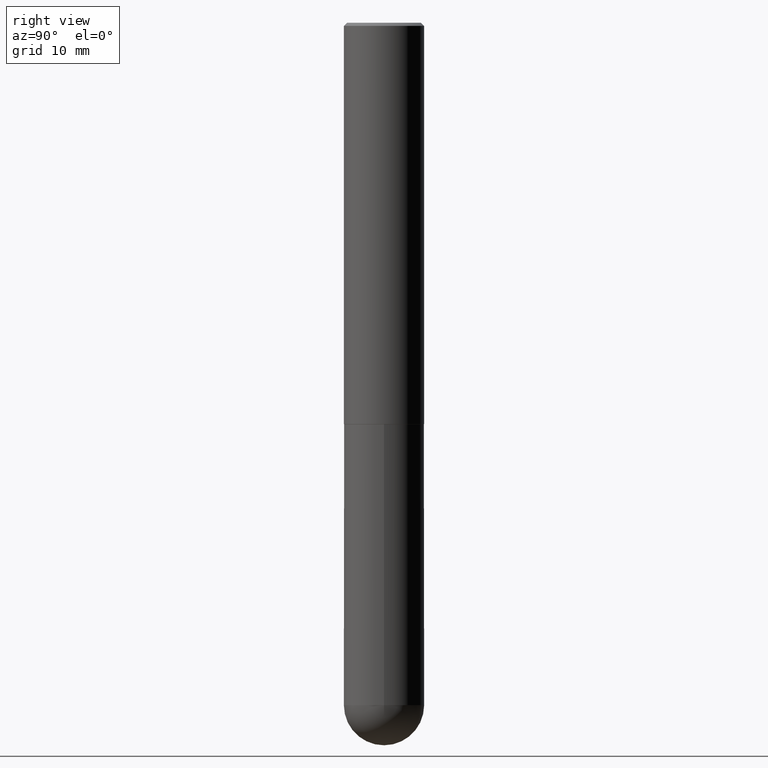
[diagram: clean part render]
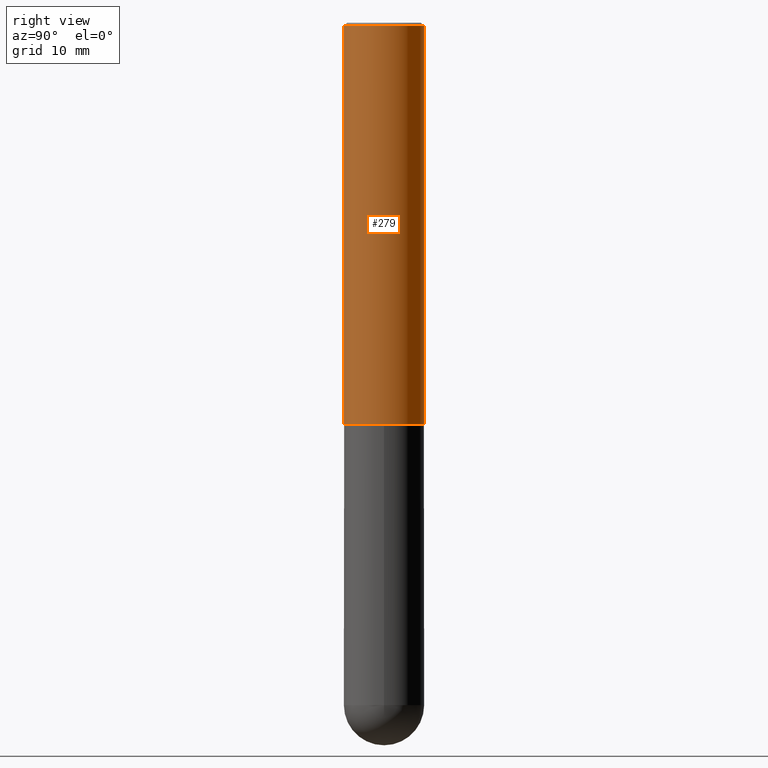
[diagram: same view with one face highlighted and labeled with its STEP entity id]
A machine part, right view. The second image highlights one B-rep face of the part: STEP entity #279.
In plain terms, the highlighted cylindrical surface (partial cylindrical patch) has radius 6.35 mm, axis along (-0, 0, 1).
Its self-contained STEP definition (entity closure, byte-faithful):
#7 = DIRECTION ( 'NONE',  ( -2.445898209547976618E-29, 3.490866408787436892E-15, 1.000000000000000000 ) ) ;
#18 = EDGE_LOOP ( 'NONE', ( #338, #402, #406, #307 ) ) ;
#23 = VECTOR ( 'NONE', #367, 39.37007874015748143 ) ;
#36 = LINE ( 'NONE', #206, #23 ) ;
#40 = FACE_OUTER_BOUND ( 'NONE', #18, .T. ) ;
#71 = AXIS2_PLACEMENT_3D ( 'NONE', #158, #162, #350 ) ;
#80 = VERTEX_POINT ( 'NONE', #352 ) ;
#104 = CARTESIAN_POINT ( 'NONE',  ( 6.112299625660394820E-29, -8.723675155559807127E-15, -2.499000000000000110 ) ) ;
#108 = DIRECTION ( 'NONE',  ( -2.445898209547976618E-29, 3.490866408787436498E-15, 1.000000000000000000 ) ) ;
#117 = CIRCLE ( 'NONE', #71, 0.2500000000000000000 ) ;
#142 = LINE ( 'NONE', #143, #360 ) ;
#143 = CARTESIAN_POINT ( 'NONE',  ( -1.745740669421567467E-15, -0.2500000000000001110, 8.727166021968597161E-16 ) ) ;
#158 = CARTESIAN_POINT ( 'NONE',  ( 4.891796419095966548E-31, -6.981732817574893210E-17, -0.02000000000000005593 ) ) ;
#162 = DIRECTION ( 'NONE',  ( -2.445898209547976618E-29, 3.490866408787436892E-15, 1.000000000000000000 ) ) ;
#168 = DIRECTION ( 'NONE',  ( -6.982962677686265922E-15, -1.000000000000000000, 4.370956789862816416E-15 ) ) ;
#169 = EDGE_CURVE ( 'NONE', #370, #80, #117, .T. ) ;
#191 = VERTEX_POINT ( 'NONE', #379 ) ;
#202 = CARTESIAN_POINT ( 'NONE',  ( -1.745740669421507316E-15, -0.2500000000000089928, -2.498999999999999222 ) ) ;
#206 = CARTESIAN_POINT ( 'NONE',  ( 1.776356839400251254E-15, 0.2500000000000001110, -8.727166021968597161E-16 ) ) ;
#234 = CYLINDRICAL_SURFACE ( 'NONE', #325, 0.2500000000000001110 ) ;
#241 = EDGE_CURVE ( 'NONE', #191, #80, #36, .T. ) ;
#264 = CARTESIAN_POINT ( 'NONE',  ( -1.715124499442882299E-15, -0.2500000000000000555, -0.01999999999999918510 ) ) ;
#267 = AXIS2_PLACEMENT_3D ( 'NONE', #104, #7, #168 ) ;
#279 = ADVANCED_FACE ( 'NONE', ( #40 ), #234, .T. ) ;
#303 = DIRECTION ( 'NONE',  ( -2.445898209547976618E-29, 3.490866408787436892E-15, 1.000000000000000000 ) ) ;
#307 = ORIENTED_EDGE ( 'NONE', *, *, #340, .F. ) ;
#310 = EDGE_CURVE ( 'NONE', #394, #191, #336, .T. ) ;
#325 = AXIS2_PLACEMENT_3D ( 'NONE', #361, #303, #396 ) ;
#336 = CIRCLE ( 'NONE', #267, 0.2500000000000002776 ) ;
#338 = ORIENTED_EDGE ( 'NONE', *, *, #310, .T. ) ;
#340 = EDGE_CURVE ( 'NONE', #394, #370, #142, .T. ) ;
#350 = DIRECTION ( 'NONE',  ( -6.982962677686265922E-15, -1.000000000000000000, 3.483106191921935554E-15 ) ) ;
#352 = CARTESIAN_POINT ( 'NONE',  ( 1.745740669421566875E-15, 0.2499999999999999167, -0.02000000000000092676 ) ) ;
#360 = VECTOR ( 'NONE', #108, 39.37007874015748143 ) ;
#361 = CARTESIAN_POINT ( 'NONE',  ( 0.000000000000000000, 0.000000000000000000, 0.000000000000000000 ) ) ;
#367 = DIRECTION ( 'NONE',  ( -2.445898209547976618E-29, 3.490866408787436498E-15, 1.000000000000000000 ) ) ;
#370 = VERTEX_POINT ( 'NONE', #264 ) ;
#379 = CARTESIAN_POINT ( 'NONE',  ( 1.776356839400282414E-15, 0.2499999999999915623, -2.499000000000001442 ) ) ;
#394 = VERTEX_POINT ( 'NONE', #202 ) ;
#396 = DIRECTION ( 'NONE',  ( -6.982962677686266711E-15, -1.000000000000000000, 3.490866408787437287E-15 ) ) ;
#402 = ORIENTED_EDGE ( 'NONE', *, *, #241, .T. ) ;
#406 = ORIENTED_EDGE ( 'NONE', *, *, #169, .F. ) ;